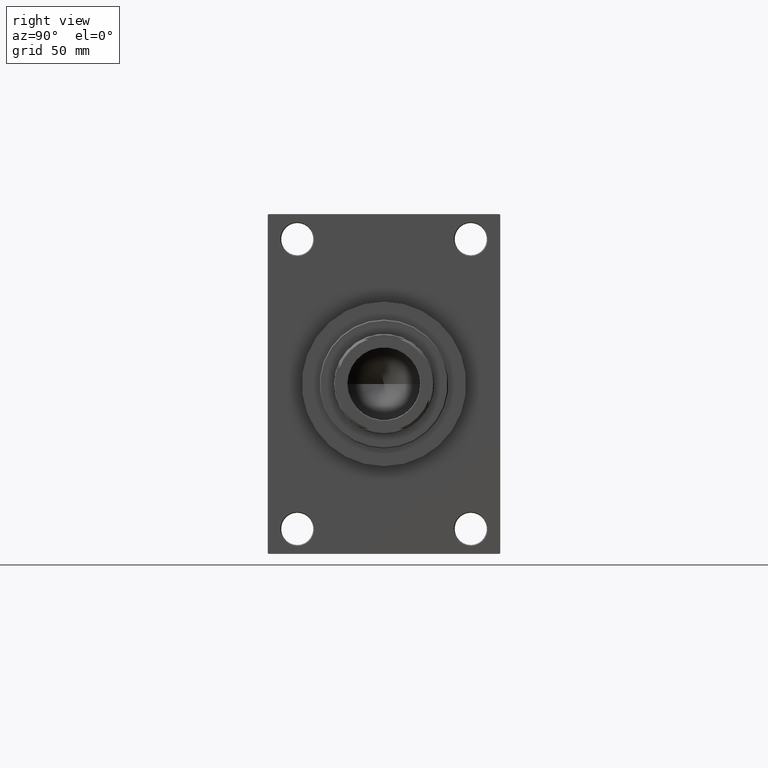
[diagram: clean part render]
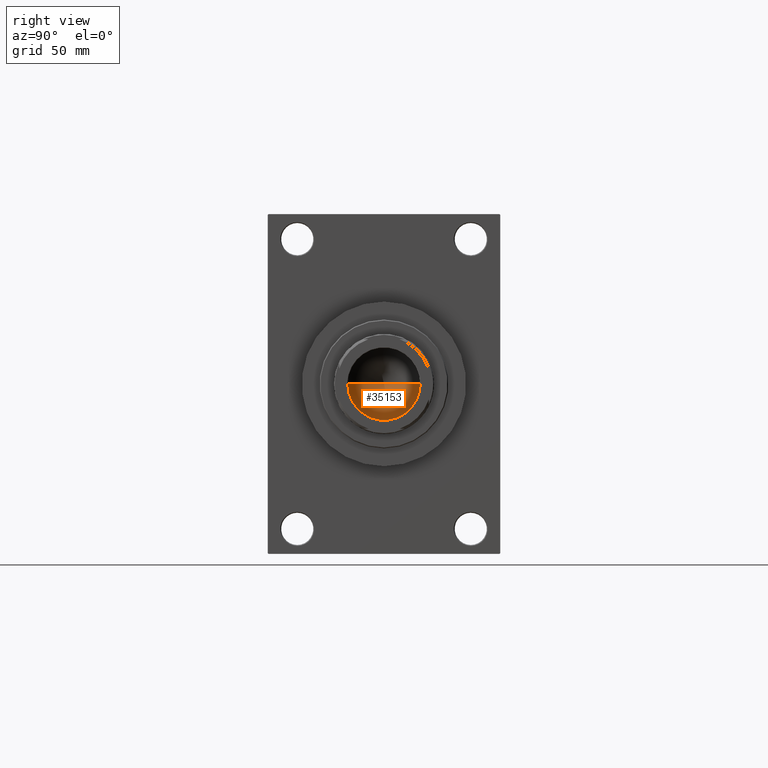
[diagram: same view with one face highlighted and labeled with its STEP entity id]
A machine part, right view. The second image highlights one B-rep face of the part: STEP entity #35153.
In plain terms, the highlighted conical surface has half-angle 59 deg.
Its self-contained STEP definition (entity closure, byte-faithful):
#759 = AXIS2_PLACEMENT_3D ( 'NONE', #24609, #9150, #46572 ) ;
#4545 = EDGE_CURVE ( 'NONE', #28061, #46294, #31340, .T. ) ;
#5274 = EDGE_CURVE ( 'NONE', #46294, #36883, #31287, .T. ) ;
#9150 = DIRECTION ( 'NONE',  ( -0.000000000000000000, -0.000000000000000000, 1.000000000000000000 ) ) ;
#9543 = VECTOR ( 'NONE', #33616, 1000.000000000000000 ) ;
#9906 = ORIENTED_EDGE ( 'NONE', *, *, #5274, .T. ) ;
#15393 = CARTESIAN_POINT ( 'NONE',  ( -1.584115414415908206E-14, 0.000000000000000000, 199.8325724646918786 ) ) ;
#16370 = DIRECTION ( 'NONE',  ( 0.8571673007021112234, 0.000000000000000000, 0.5150380749100560429 ) ) ;
#20234 = CARTESIAN_POINT ( 'NONE',  ( 20.24999999999998934, 0.000000000000000000, 212.0000000000000284 ) ) ;
#21225 = VECTOR ( 'NONE', #16370, 1000.000000000000000 ) ;
#21593 = CONICAL_SURFACE ( 'NONE', #759, 20.24999999999998934, 1.029744258676652313 ) ;
#22621 = EDGE_LOOP ( 'NONE', ( #25625, #24413, #9906 ) ) ;
#23398 = DIRECTION ( 'NONE',  ( 1.000000000000000000, 0.000000000000000000, 0.000000000000000000 ) ) ;
#24413 = ORIENTED_EDGE ( 'NONE', *, *, #4545, .T. ) ;
#24609 = CARTESIAN_POINT ( 'NONE',  ( 0.000000000000000000, 0.000000000000000000, 212.0000000000000284 ) ) ;
#25625 = ORIENTED_EDGE ( 'NONE', *, *, #47619, .F. ) ;
#26780 = CARTESIAN_POINT ( 'NONE',  ( 0.000000000000000000, 0.000000000000000000, 212.0000000000000284 ) ) ;
#27265 = DIRECTION ( 'NONE',  ( -0.000000000000000000, -0.000000000000000000, 1.000000000000000000 ) ) ;
#28000 = FACE_OUTER_BOUND ( 'NONE', #22621, .T. ) ;
#28061 = VERTEX_POINT ( 'NONE', #15393 ) ;
#29764 = AXIS2_PLACEMENT_3D ( 'NONE', #26780, #27265, #23398 ) ;
#31287 = CIRCLE ( 'NONE', #29764, 20.24999999999998934 ) ;
#31340 = LINE ( 'NONE', #20234, #21225 ) ;
#33616 = DIRECTION ( 'NONE',  ( -0.8571673007021112234, 1.049727191138617340E-16, 0.5150380749100560429 ) ) ;
#35153 = ADVANCED_FACE ( 'NONE', ( #28000 ), #21593, .F. ) ;
#36883 = VERTEX_POINT ( 'NONE', #37262 ) ;
#37262 = CARTESIAN_POINT ( 'NONE',  ( -20.24999999999998934, 2.479909768273389117E-15, 212.0000000000000284 ) ) ;
#40622 = CARTESIAN_POINT ( 'NONE',  ( -20.24999999999998934, 2.479909768273389117E-15, 212.0000000000000284 ) ) ;
#44480 = LINE ( 'NONE', #40622, #9543 ) ;
#46294 = VERTEX_POINT ( 'NONE', #47206 ) ;
#46572 = DIRECTION ( 'NONE',  ( 1.000000000000000000, 0.000000000000000000, 0.000000000000000000 ) ) ;
#47206 = CARTESIAN_POINT ( 'NONE',  ( 20.24999999999998934, 0.000000000000000000, 212.0000000000000284 ) ) ;
#47619 = EDGE_CURVE ( 'NONE', #28061, #36883, #44480, .T. ) ;